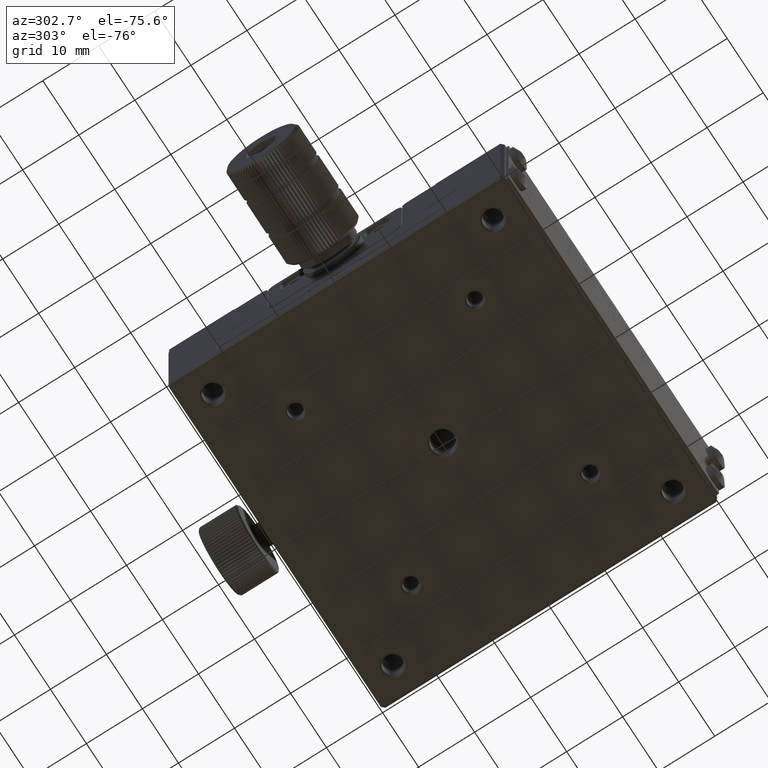
[diagram: clean part render]
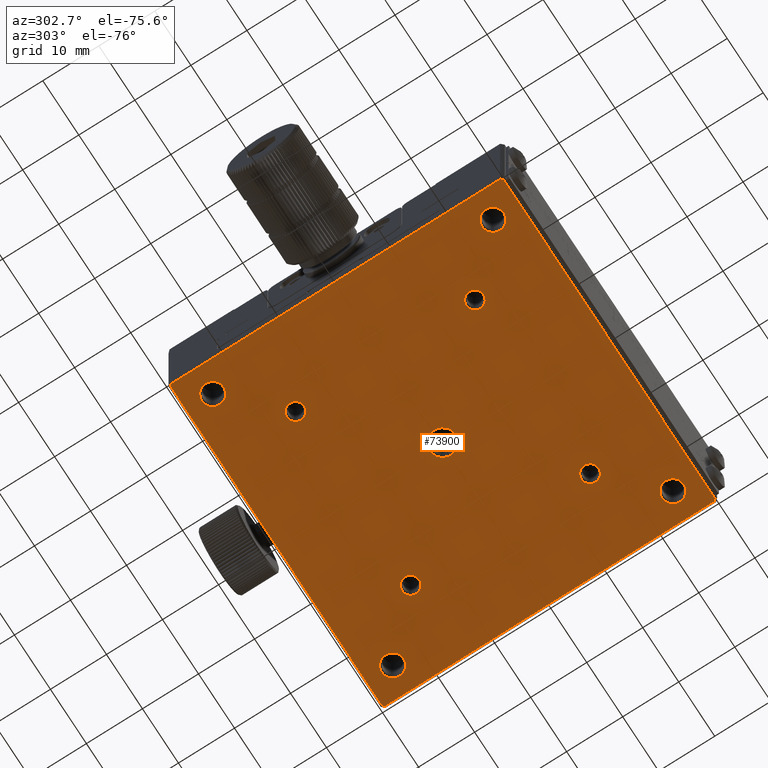
[diagram: same view with one face highlighted and labeled with its STEP entity id]
A machine part, auxiliary view. The second image highlights one B-rep face of the part: STEP entity #73900.
In plain terms, the highlighted planar face has unit normal (0, 0, -1).
Its self-contained STEP definition (entity closure, byte-faithful):
#580 = CARTESIAN_POINT ( 'NONE',  ( -25.00000000000004974, -25.00000000000000000, 60.00000000003633005 ) ) ;
#830 = LINE ( 'NONE', #40127, #73223 ) ;
#1732 = ORIENTED_EDGE ( 'NONE', *, *, #59691, .T. ) ;
#1858 = AXIS2_PLACEMENT_3D ( 'NONE', #580, #68842, #22911 ) ;
#1944 = VERTEX_POINT ( 'NONE', #64579 ) ;
#2040 = FACE_BOUND ( 'NONE', #29906, .T. ) ;
#2296 = LINE ( 'NONE', #25372, #55541 ) ;
#2771 = ORIENTED_EDGE ( 'NONE', *, *, #71900, .T. ) ;
#2978 = CARTESIAN_POINT ( 'NONE',  ( -2.299999999991133581, 0.000000000000000000, 60.00000000000221689 ) ) ;
#3022 = EDGE_CURVE ( 'NONE', #47916, #47916, #7947, .T. ) ;
#3321 = ORIENTED_EDGE ( 'NONE', *, *, #41247, .T. ) ;
#4502 = AXIS2_PLACEMENT_3D ( 'NONE', #13217, #12474, #25688 ) ;
#4543 = ORIENTED_EDGE ( 'NONE', *, *, #46897, .T. ) ;
#4714 = DIRECTION ( 'NONE',  ( 0.000000000000000000, 1.000000000000000000, 0.000000000000000000 ) ) ;
#5039 = CARTESIAN_POINT ( 'NONE',  ( -26.94999999999936335, 25.00000000000000000, 60.00000000000227374 ) ) ;
#5632 = DIRECTION ( 'NONE',  ( -1.000000000000000000, 0.000000000000000000, 0.000000000000000000 ) ) ;
#5769 = DIRECTION ( 'NONE',  ( -1.000000000000000000, 0.000000000000000000, 0.000000000000000000 ) ) ;
#6066 = AXIS2_PLACEMENT_3D ( 'NONE', #43404, #60335, #36644 ) ;
#6140 = VERTEX_POINT ( 'NONE', #74142 ) ;
#6724 = DIRECTION ( 'NONE',  ( -0.000000000000000000, -0.000000000000000000, 1.000000000000000000 ) ) ;
#7306 = CARTESIAN_POINT ( 'NONE',  ( 29.69999999999996376, -29.37573593128804816, 60.00000000000004263 ) ) ;
#7511 = CIRCLE ( 'NONE', #17207, 1.550000000008822099 ) ;
#7764 = CARTESIAN_POINT ( 'NONE',  ( -29.70000000000005258, -29.37573593128806237, 60.00000000000000000 ) ) ;
#7947 = CIRCLE ( 'NONE', #28483, 2.299999999991086508 ) ;
#8090 = FACE_BOUND ( 'NONE', #69308, .T. ) ;
#8107 = VERTEX_POINT ( 'NONE', #38308 ) ;
#8453 = VERTEX_POINT ( 'NONE', #42843 ) ;
#8910 = EDGE_CURVE ( 'NONE', #45874, #45874, #30501, .T. ) ;
#8968 = DIRECTION ( 'NONE',  ( -1.000000000000000000, 0.000000000000000000, 0.000000000000000000 ) ) ;
#9576 = ORIENTED_EDGE ( 'NONE', *, *, #17329, .T. ) ;
#9827 = CIRCLE ( 'NONE', #38753, 1.550000000008822099 ) ;
#9985 = VERTEX_POINT ( 'NONE', #56002 ) ;
#10510 = CARTESIAN_POINT ( 'NONE',  ( 29.69999999999996376, 29.37573593128808014, 60.00000000000004263 ) ) ;
#12416 = CARTESIAN_POINT ( 'NONE',  ( 15.99999999999994849, 15.99999999999999289, 60.00000000003950618 ) ) ;
#12474 = DIRECTION ( 'NONE',  ( -0.000000000000000000, -0.000000000000000000, 1.000000000000000000 ) ) ;
#13014 = VERTEX_POINT ( 'NONE', #7764 ) ;
#13143 = DIRECTION ( 'NONE',  ( -0.000000000000000000, -0.000000000000000000, 1.000000000000000000 ) ) ;
#13217 = CARTESIAN_POINT ( 'NONE',  ( 24.99999999999997513, -25.00000000000000000, 59.99999999996813216 ) ) ;
#13791 = VERTEX_POINT ( 'NONE', #60506 ) ;
#14059 = EDGE_LOOP ( 'NONE', ( #36325, #9576, #18089, #2771, #1732, #28412, #23706, #30261 ) ) ;
#14901 = CARTESIAN_POINT ( 'NONE',  ( 15.99999999999995914, -16.00000000000000000, 60.00000000003952039 ) ) ;
#15036 = EDGE_CURVE ( 'NONE', #70186, #1944, #68622, .T. ) ;
#15275 = FACE_BOUND ( 'NONE', #71276, .T. ) ;
#15296 = LINE ( 'NONE', #30780, #21199 ) ;
#15625 = EDGE_CURVE ( 'NONE', #52040, #70186, #48435, .T. ) ;
#16392 = PLANE ( 'NONE',  #55377 ) ;
#16651 = DIRECTION ( 'NONE',  ( -1.000000000000000000, 0.000000000000000000, -3.016910393014834566E-15 ) ) ;
#17207 = AXIS2_PLACEMENT_3D ( 'NONE', #14901, #25492, #37935 ) ;
#17263 = VECTOR ( 'NONE', #4714, 1000.000000000000000 ) ;
#17329 = EDGE_CURVE ( 'NONE', #1944, #13014, #2296, .T. ) ;
#17855 = DIRECTION ( 'NONE',  ( 0.7071067811865474617, 0.7071067811865474617, 0.000000000000000000 ) ) ;
#18089 = ORIENTED_EDGE ( 'NONE', *, *, #24078, .T. ) ;
#20602 = DIRECTION ( 'NONE',  ( 0.7071067811865513475, -0.7071067811865437980, 0.000000000000000000 ) ) ;
#21199 = VECTOR ( 'NONE', #53783, 1000.000000000000000 ) ;
#21746 = CARTESIAN_POINT ( 'NONE',  ( -29.70000000000004903, -29.99999999999998224, 60.00000000000000000 ) ) ;
#22911 = DIRECTION ( 'NONE',  ( -1.000000000000000000, 0.000000000000000000, 0.000000000000000000 ) ) ;
#23706 = ORIENTED_EDGE ( 'NONE', *, *, #58434, .T. ) ;
#24078 = EDGE_CURVE ( 'NONE', #13014, #40252, #57167, .T. ) ;
#25069 = CARTESIAN_POINT ( 'NONE',  ( -29.70000000000005258, 29.37573593128810856, 60.00000000000000000 ) ) ;
#25118 = FACE_BOUND ( 'NONE', #57906, .T. ) ;
#25372 = CARTESIAN_POINT ( 'NONE',  ( -29.37573593128814053, -29.69999999999998153, 60.00000000000000000 ) ) ;
#25492 = DIRECTION ( 'NONE',  ( -0.000000000000000000, -0.000000000000000000, 1.000000000000000000 ) ) ;
#25513 = CARTESIAN_POINT ( 'NONE',  ( 29.37573593128801619, 29.70000000000001350, 60.00000000000004263 ) ) ;
#25688 = DIRECTION ( 'NONE',  ( -1.000000000000000000, 0.000000000000000000, 0.000000000000000000 ) ) ;
#26049 = EDGE_LOOP ( 'NONE', ( #66045 ) ) ;
#27369 = DIRECTION ( 'NONE',  ( 6.753856733136366653E-16, 0.000000000000000000, -1.000000000000000000 ) ) ;
#27734 = VERTEX_POINT ( 'NONE', #5039 ) ;
#28412 = ORIENTED_EDGE ( 'NONE', *, *, #44808, .T. ) ;
#28483 = AXIS2_PLACEMENT_3D ( 'NONE', #34727, #35082, #16651 ) ;
#28503 = DIRECTION ( 'NONE',  ( -0.000000000000000000, -0.000000000000000000, 1.000000000000000000 ) ) ;
#29549 = DIRECTION ( 'NONE',  ( -0.000000000000000000, -0.000000000000000000, 1.000000000000000000 ) ) ;
#29637 = DIRECTION ( 'NONE',  ( 1.000000000000000000, -0.000000000000000000, 6.753856733136366653E-16 ) ) ;
#29906 = EDGE_LOOP ( 'NONE', ( #67094 ) ) ;
#30261 = ORIENTED_EDGE ( 'NONE', *, *, #15625, .T. ) ;
#30501 = CIRCLE ( 'NONE', #67842, 1.949999999965260855 ) ;
#30780 = CARTESIAN_POINT ( 'NONE',  ( 29.69999999999996376, -29.99999999999998224, 60.00000000000004263 ) ) ;
#31119 = FACE_BOUND ( 'NONE', #35663, .T. ) ;
#34484 = AXIS2_PLACEMENT_3D ( 'NONE', #51102, #28503, #51482 ) ;
#34727 = CARTESIAN_POINT ( 'NONE',  ( -4.748805515486502479E-14, 0.000000000000000000, 60.00000000000222400 ) ) ;
#35082 = DIRECTION ( 'NONE',  ( -1.508455196507448443E-15, -0.000000000000000000, 1.000000000000000000 ) ) ;
#35594 = CARTESIAN_POINT ( 'NONE',  ( 23.05000000003471428, -25.00000000000000000, 59.99999999996813216 ) ) ;
#35663 = EDGE_LOOP ( 'NONE', ( #3321 ) ) ;
#36325 = ORIENTED_EDGE ( 'NONE', *, *, #15036, .T. ) ;
#36644 = DIRECTION ( 'NONE',  ( -1.000000000000000000, 0.000000000000000000, 0.000000000000000000 ) ) ;
#36808 = FACE_BOUND ( 'NONE', #38299, .T. ) ;
#37185 = CARTESIAN_POINT ( 'NONE',  ( -17.54999999995202487, -16.00000000000000000, 59.99999999996494182 ) ) ;
#37935 = DIRECTION ( 'NONE',  ( -1.000000000000000000, 0.000000000000000000, 0.000000000000000000 ) ) ;
#38155 = EDGE_LOOP ( 'NONE', ( #4543 ) ) ;
#38299 = EDGE_LOOP ( 'NONE', ( #48303 ) ) ;
#38308 = CARTESIAN_POINT ( 'NONE',  ( 14.44999999999112639, 15.99999999999999289, 60.00000000003950618 ) ) ;
#38453 = EDGE_CURVE ( 'NONE', #8453, #8453, #54895, .T. ) ;
#38753 = AXIS2_PLACEMENT_3D ( 'NONE', #12416, #6724, #5632 ) ;
#40009 = CARTESIAN_POINT ( 'NONE',  ( 29.99999999999996092, -29.69999999999998153, 60.00000000000004263 ) ) ;
#40127 = CARTESIAN_POINT ( 'NONE',  ( -29.70000000000004903, 29.37573593128809790, 60.00000000000000000 ) ) ;
#40252 = VERTEX_POINT ( 'NONE', #25069 ) ;
#40606 = CARTESIAN_POINT ( 'NONE',  ( 29.99999999999996092, 29.70000000000001350, 60.00000000000004263 ) ) ;
#41247 = EDGE_CURVE ( 'NONE', #13791, #13791, #69414, .T. ) ;
#41517 = EDGE_LOOP ( 'NONE', ( #45663 ) ) ;
#42843 = CARTESIAN_POINT ( 'NONE',  ( -26.94999999996531059, -25.00000000000000000, 60.00000000003633005 ) ) ;
#43404 = CARTESIAN_POINT ( 'NONE',  ( -16.00000000000004263, -16.00000000000000000, 59.99999999996494182 ) ) ;
#44080 = EDGE_CURVE ( 'NONE', #66924, #66924, #68692, .T. ) ;
#44419 = CARTESIAN_POINT ( 'NONE',  ( 29.37573593128802685, -29.69999999999997797, 60.00000000000003553 ) ) ;
#44808 = EDGE_CURVE ( 'NONE', #66765, #53182, #72209, .T. ) ;
#45247 = EDGE_CURVE ( 'NONE', #8107, #8107, #9827, .T. ) ;
#45663 = ORIENTED_EDGE ( 'NONE', *, *, #45247, .T. ) ;
#45874 = VERTEX_POINT ( 'NONE', #49402 ) ;
#46006 = ORIENTED_EDGE ( 'NONE', *, *, #60203, .T. ) ;
#46888 = VERTEX_POINT ( 'NONE', #35594 ) ;
#46897 = EDGE_CURVE ( 'NONE', #9985, #9985, #7511, .T. ) ;
#47916 = VERTEX_POINT ( 'NONE', #2978 ) ;
#48303 = ORIENTED_EDGE ( 'NONE', *, *, #8910, .T. ) ;
#48435 = LINE ( 'NONE', #7306, #68828 ) ;
#49402 = CARTESIAN_POINT ( 'NONE',  ( 23.05000000003471428, 25.00000000000000000, 59.99999999996813216 ) ) ;
#51102 = CARTESIAN_POINT ( 'NONE',  ( -25.00000000000004974, 25.00000000000000000, 60.00000000000227374 ) ) ;
#51482 = DIRECTION ( 'NONE',  ( -1.000000000000000000, 0.000000000000000000, 0.000000000000000000 ) ) ;
#51798 = CARTESIAN_POINT ( 'NONE',  ( 24.99999999999997513, 25.00000000000000000, 59.99999999996813216 ) ) ;
#52040 = VERTEX_POINT ( 'NONE', #65060 ) ;
#53182 = VERTEX_POINT ( 'NONE', #10510 ) ;
#53756 = FACE_BOUND ( 'NONE', #41517, .T. ) ;
#53783 = DIRECTION ( 'NONE',  ( -0.000000000000000000, -1.000000000000000000, -0.000000000000000000 ) ) ;
#53853 = AXIS2_PLACEMENT_3D ( 'NONE', #65902, #13143, #8968 ) ;
#54119 = FACE_BOUND ( 'NONE', #26049, .T. ) ;
#54895 = CIRCLE ( 'NONE', #1858, 1.949999999965260855 ) ;
#55377 = AXIS2_PLACEMENT_3D ( 'NONE', #74040, #27369, #72933 ) ;
#55431 = ORIENTED_EDGE ( 'NONE', *, *, #3022, .T. ) ;
#55541 = VECTOR ( 'NONE', #65672, 1000.000000000000114 ) ;
#56002 = CARTESIAN_POINT ( 'NONE',  ( 14.44999999999113705, -16.00000000000000000, 60.00000000003952039 ) ) ;
#57167 = LINE ( 'NONE', #21746, #17263 ) ;
#57893 = LINE ( 'NONE', #40606, #63452 ) ;
#57906 = EDGE_LOOP ( 'NONE', ( #46006 ) ) ;
#58259 = CARTESIAN_POINT ( 'NONE',  ( 29.37573593128801264, 29.70000000000001705, 60.00000000000004263 ) ) ;
#58434 = EDGE_CURVE ( 'NONE', #53182, #52040, #15296, .T. ) ;
#58532 = EDGE_CURVE ( 'NONE', #27734, #27734, #71733, .T. ) ;
#59691 = EDGE_CURVE ( 'NONE', #6140, #66765, #57893, .T. ) ;
#60203 = EDGE_CURVE ( 'NONE', #46888, #46888, #68348, .T. ) ;
#60335 = DIRECTION ( 'NONE',  ( -0.000000000000000000, -0.000000000000000000, 1.000000000000000000 ) ) ;
#60506 = CARTESIAN_POINT ( 'NONE',  ( -17.54999999995201065, 16.00000000000000000, 59.99999999996495603 ) ) ;
#61262 = FACE_BOUND ( 'NONE', #38155, .T. ) ;
#61551 = VECTOR ( 'NONE', #20602, 1000.000000000000000 ) ;
#62600 = DIRECTION ( 'NONE',  ( -1.000000000000000000, 0.000000000000000000, -6.753856733136366653E-16 ) ) ;
#63452 = VECTOR ( 'NONE', #29637, 1000.000000000000000 ) ;
#64579 = CARTESIAN_POINT ( 'NONE',  ( -29.37573593128814409, -29.69999999999998153, 60.00000000000000000 ) ) ;
#65060 = CARTESIAN_POINT ( 'NONE',  ( 29.69999999999996376, -29.37573593128804816, 60.00000000000004263 ) ) ;
#65672 = DIRECTION ( 'NONE',  ( -0.7071067811865398012, 0.7071067811865551223, 0.000000000000000000 ) ) ;
#65902 = CARTESIAN_POINT ( 'NONE',  ( -16.00000000000002842, 16.00000000000000000, 59.99999999996495603 ) ) ;
#66045 = ORIENTED_EDGE ( 'NONE', *, *, #38453, .T. ) ;
#66460 = VECTOR ( 'NONE', #62600, 1000.000000000000000 ) ;
#66765 = VERTEX_POINT ( 'NONE', #58259 ) ;
#66924 = VERTEX_POINT ( 'NONE', #37185 ) ;
#67094 = ORIENTED_EDGE ( 'NONE', *, *, #44080, .T. ) ;
#67842 = AXIS2_PLACEMENT_3D ( 'NONE', #51798, #29549, #5769 ) ;
#68348 = CIRCLE ( 'NONE', #4502, 1.949999999965260855 ) ;
#68622 = LINE ( 'NONE', #40009, #66460 ) ;
#68692 = CIRCLE ( 'NONE', #6066, 1.549999999951982232 ) ;
#68828 = VECTOR ( 'NONE', #71399, 1000.000000000000000 ) ;
#68842 = DIRECTION ( 'NONE',  ( -0.000000000000000000, -0.000000000000000000, 1.000000000000000000 ) ) ;
#69308 = EDGE_LOOP ( 'NONE', ( #72729 ) ) ;
#69414 = CIRCLE ( 'NONE', #53853, 1.549999999951982232 ) ;
#70186 = VERTEX_POINT ( 'NONE', #44419 ) ;
#71276 = EDGE_LOOP ( 'NONE', ( #55431 ) ) ;
#71399 = DIRECTION ( 'NONE',  ( -0.7071067811865513475, -0.7071067811865437980, 0.000000000000000000 ) ) ;
#71733 = CIRCLE ( 'NONE', #34484, 1.949999999999313394 ) ;
#71900 = EDGE_CURVE ( 'NONE', #40252, #6140, #830, .T. ) ;
#72209 = LINE ( 'NONE', #25513, #61551 ) ;
#72729 = ORIENTED_EDGE ( 'NONE', *, *, #58532, .T. ) ;
#72933 = DIRECTION ( 'NONE',  ( -1.000000000000000000, 0.000000000000000000, -6.753856733136366653E-16 ) ) ;
#73223 = VECTOR ( 'NONE', #17855, 1000.000000000000114 ) ;
#73900 = ADVANCED_FACE ( 'NONE', ( #15275, #61262, #53756, #31119, #2040, #25118, #36808, #8090, #54119, #74403 ), #16392, .T. ) ;
#74040 = CARTESIAN_POINT ( 'NONE',  ( 29.99999999999996092, -29.99999999999998224, 60.00000000000004263 ) ) ;
#74142 = CARTESIAN_POINT ( 'NONE',  ( -29.37573593128813698, 29.70000000000001705, 60.00000000000000000 ) ) ;
#74403 = FACE_OUTER_BOUND ( 'NONE', #14059, .T. ) ;